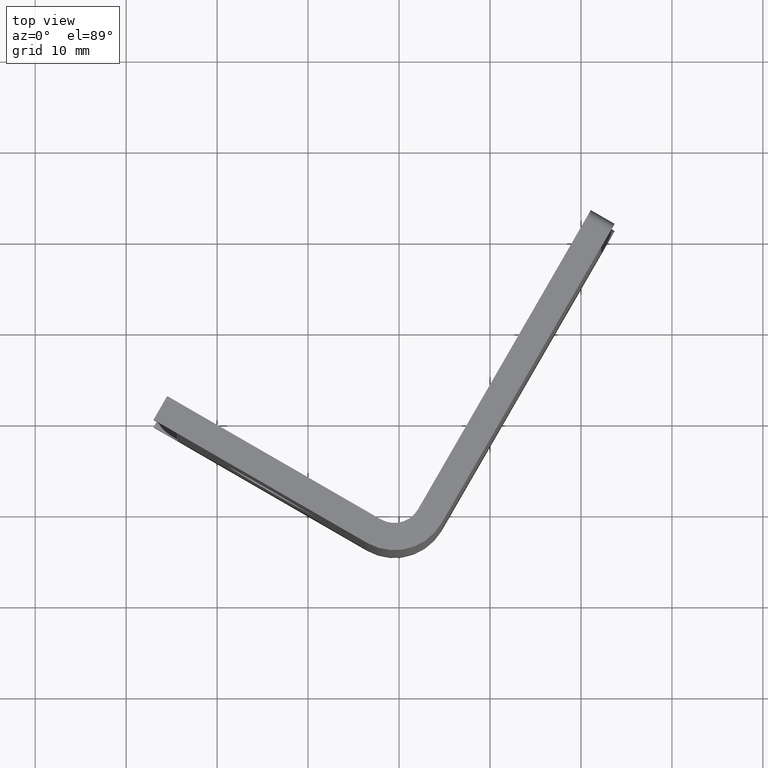
[diagram: clean part render]
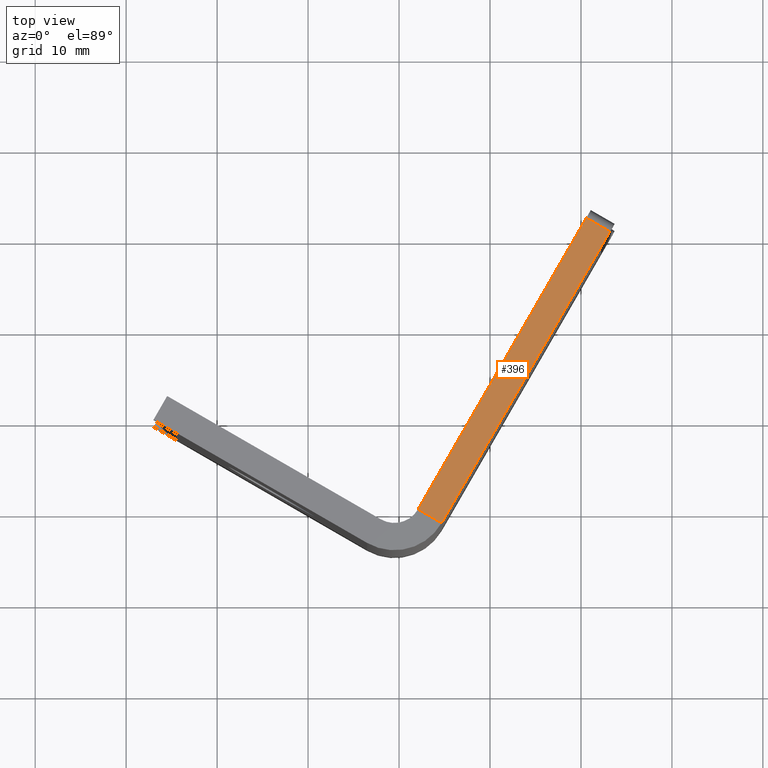
[diagram: same view with one face highlighted and labeled with its STEP entity id]
A machine part, top view. The second image highlights one B-rep face of the part: STEP entity #396.
In plain terms, the highlighted planar face has unit normal (0, -0, 1).
Its self-contained STEP definition (entity closure, byte-faithful):
#51 = CARTESIAN_POINT ( 'NONE',  ( 610.5848748840967346, 1027.349778215887454, 25.00000000000000000 ) ) ;
#87 = CARTESIAN_POINT ( 'NONE',  ( 630.5831529111263762, 1061.987811822590402, 24.99999999999999645 ) ) ;
#99 = AXIS2_PLACEMENT_3D ( 'NONE', #123, #406, #410 ) ;
#103 = ORIENTED_EDGE ( 'NONE', *, *, #322, .T. ) ;
#121 = LINE ( 'NONE', #619, #823 ) ;
#123 = CARTESIAN_POINT ( 'NONE',  ( 610.5848748840967346, 1027.349778215887454, 25.00000000000000000 ) ) ;
#195 = DIRECTION ( 'NONE',  ( -0.8660254037844363761, 0.5000000000000041078, 0.000000000000000000 ) ) ;
#215 = LINE ( 'NONE', #87, #522 ) ;
#237 = DIRECTION ( 'NONE',  ( 0.5000000000000041078, 0.8660254037844363761, -0.000000000000000000 ) ) ;
#244 = VECTOR ( 'NONE', #237, 1000.000000000000000 ) ;
#305 = CARTESIAN_POINT ( 'NONE',  ( 613.1829510954501075, 1025.849778215887227, 25.00000000000000000 ) ) ;
#322 = EDGE_CURVE ( 'NONE', #666, #634, #215, .T. ) ;
#325 = DIRECTION ( 'NONE',  ( 0.5000000000000041078, 0.8660254037844363761, 0.000000000000000000 ) ) ;
#330 = EDGE_CURVE ( 'NONE', #658, #666, #735, .T. ) ;
#350 = ORIENTED_EDGE ( 'NONE', *, *, #422, .F. ) ;
#393 = CARTESIAN_POINT ( 'NONE',  ( 630.5831529111263762, 1061.987811822590402, 24.99999999999999645 ) ) ;
#396 = ADVANCED_FACE ( 'NONE', ( #613 ), #451, .T. ) ;
#406 = DIRECTION ( 'NONE',  ( 0.000000000000000000, -0.000000000000000000, 1.000000000000000000 ) ) ;
#410 = DIRECTION ( 'NONE',  ( 0.5000000000000041078, 0.8660254037844363761, 0.000000000000000000 ) ) ;
#422 = EDGE_CURVE ( 'NONE', #547, #634, #675, .T. ) ;
#442 = EDGE_LOOP ( 'NONE', ( #746, #894, #103, #350 ) ) ;
#445 = DIRECTION ( 'NONE',  ( -0.8660254037844363761, 0.5000000000000041078, 0.000000000000000000 ) ) ;
#451 = PLANE ( 'NONE',  #99 ) ;
#511 = CARTESIAN_POINT ( 'NONE',  ( 614.6829510954501075, 1028.447854427240600, 25.00000000000000000 ) ) ;
#522 = VECTOR ( 'NONE', #445, 1000.000000000000000 ) ;
#547 = VERTEX_POINT ( 'NONE', #883 ) ;
#613 = FACE_OUTER_BOUND ( 'NONE', #442, .T. ) ;
#619 = CARTESIAN_POINT ( 'NONE',  ( 612.0848748840968483, 1029.947854427240600, 25.00000000000000000 ) ) ;
#634 = VERTEX_POINT ( 'NONE', #393 ) ;
#638 = VECTOR ( 'NONE', #325, 1000.000000000000000 ) ;
#658 = VERTEX_POINT ( 'NONE', #511 ) ;
#666 = VERTEX_POINT ( 'NONE', #875 ) ;
#675 = LINE ( 'NONE', #51, #638 ) ;
#735 = LINE ( 'NONE', #305, #244 ) ;
#746 = ORIENTED_EDGE ( 'NONE', *, *, #901, .F. ) ;
#823 = VECTOR ( 'NONE', #195, 1000.000000000000000 ) ;
#875 = CARTESIAN_POINT ( 'NONE',  ( 633.1812291224796354, 1060.487811822590402, 24.99999999999999645 ) ) ;
#883 = CARTESIAN_POINT ( 'NONE',  ( 612.0848748840968483, 1029.947854427240600, 25.00000000000000000 ) ) ;
#894 = ORIENTED_EDGE ( 'NONE', *, *, #330, .T. ) ;
#901 = EDGE_CURVE ( 'NONE', #658, #547, #121, .T. ) ;